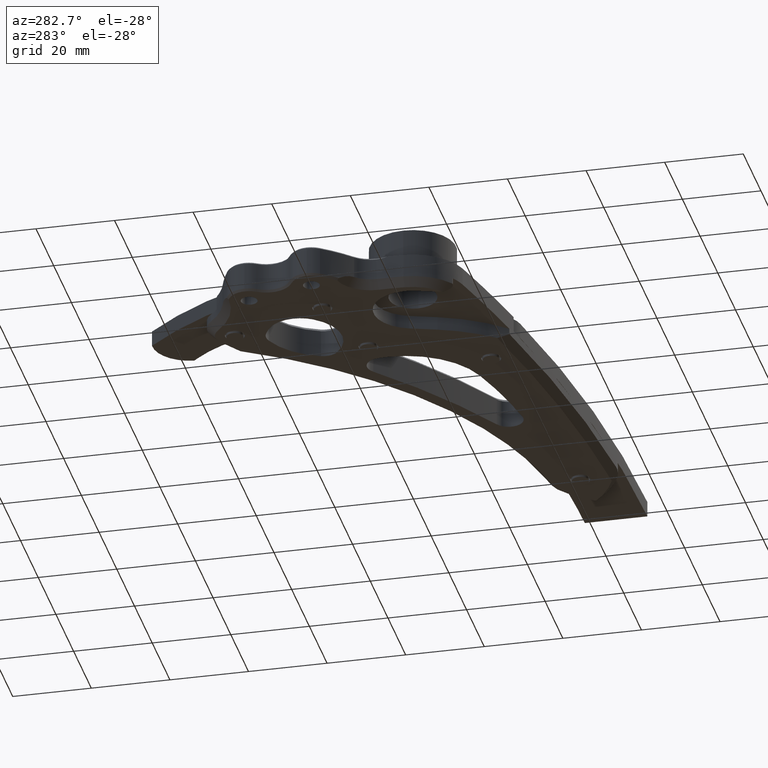
[diagram: clean part render]
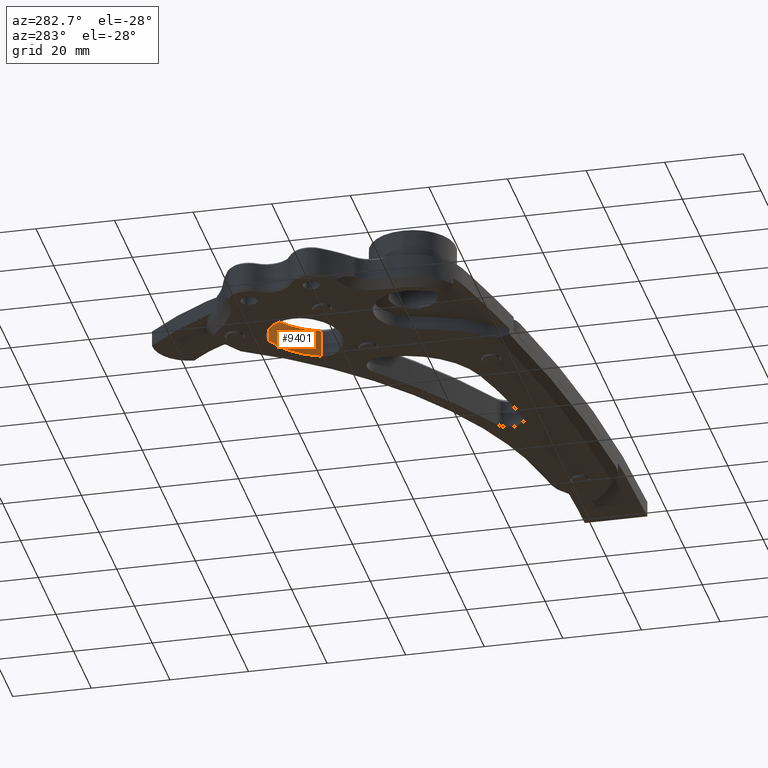
[diagram: same view with one face highlighted and labeled with its STEP entity id]
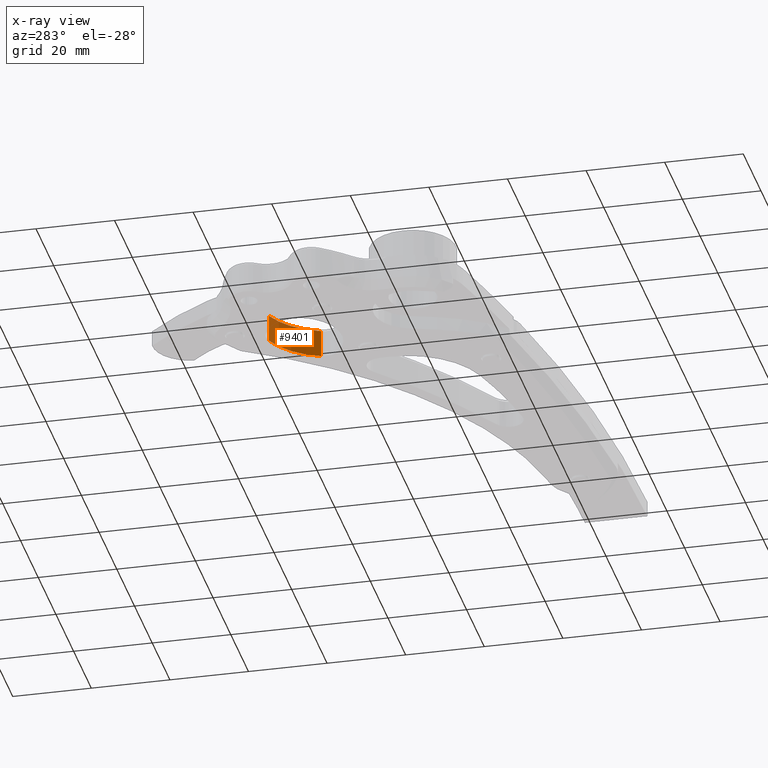
[diagram: x-ray of the same camera — body ghosted, the highlighted face saturated]
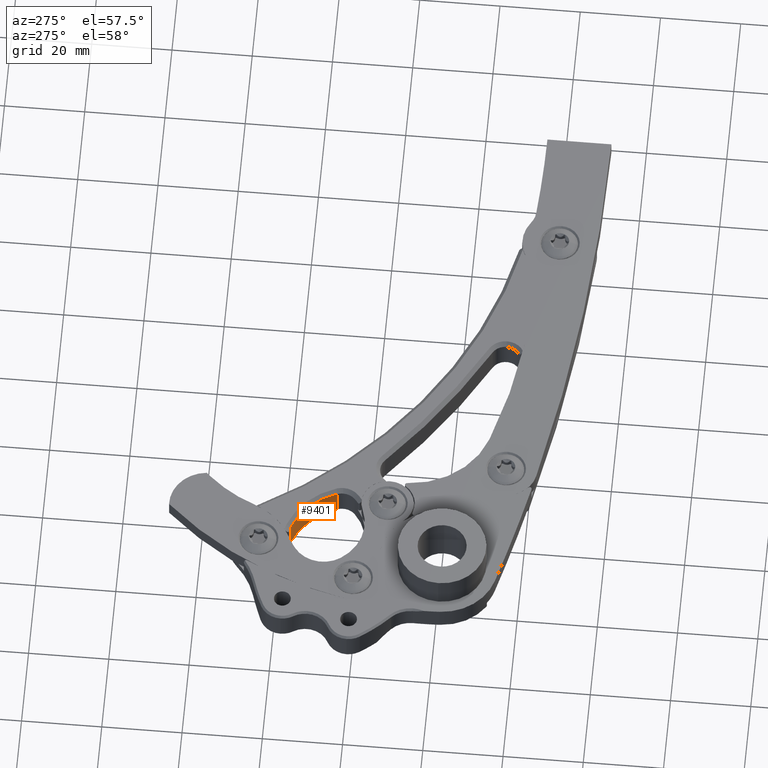
[diagram: same view with one face highlighted and labeled with its STEP entity id]
A machine part, auxiliary view. The second image highlights one B-rep face of the part: STEP entity #9401.
The next image is the same camera in x-ray: the body ghosted, the highlighted face saturated — about 0% of this face is hidden behind the body in this view.
A second angle (auxiliary view) of the same face is appended — the face is thin or edge-on in the first view.
In plain terms, the highlighted cylindrical surface (partial cylindrical patch) has radius 18 mm, axis along (0, 0, -1).
Its self-contained STEP definition (entity closure, byte-faithful):
#171 = VERTEX_POINT ( 'NONE', #5964 ) ;
#196 = DIRECTION ( 'NONE',  ( 0.0000000000000000000, 0.0000000000000000000, -1.000000000000000000 ) ) ;
#451 = CARTESIAN_POINT ( 'NONE',  ( 0.7477740345579309000, 1.090413955512788524, 0.2755905511811025943 ) ) ;
#468 = FACE_OUTER_BOUND ( 'NONE', #1988, .T. ) ;
#580 = CARTESIAN_POINT ( 'NONE',  ( 0.7477740345579309000, 1.090413955512788524, 0.0000000000000000000 ) ) ;
#732 = VECTOR ( 'NONE', #1015, 39.37007874015748143 ) ;
#820 = VECTOR ( 'NONE', #196, 39.37007874015748143 ) ;
#924 = CARTESIAN_POINT ( 'NONE',  ( 0.7477740345579309000, 1.090413955512788524, 6.204835224786508618 ) ) ;
#1015 = DIRECTION ( 'NONE',  ( 0.0000000000000000000, 0.0000000000000000000, -1.000000000000000000 ) ) ;
#1272 = AXIS2_PLACEMENT_3D ( 'NONE', #6043, #7836, #1554 ) ;
#1317 = CARTESIAN_POINT ( 'NONE',  ( 0.3203078328075648629, 1.516672676733199943, 6.204835224786508618 ) ) ;
#1469 = CARTESIAN_POINT ( 'NONE',  ( 0.3203078328075648629, 1.516672676733199943, 0.2755905511811025943 ) ) ;
#1554 = DIRECTION ( 'NONE',  ( 1.000000000000000000, 0.0000000000000000000, 0.0000000000000000000 ) ) ;
#1988 = EDGE_LOOP ( 'NONE', ( #4911, #3008, #8719, #6196 ) ) ;
#2112 = CARTESIAN_POINT ( 'NONE',  ( 0.08130912104371064431, 0.8495290488859255085, 6.204835224786508618 ) ) ;
#2703 = VERTEX_POINT ( 'NONE', #1469 ) ;
#2721 = AXIS2_PLACEMENT_3D ( 'NONE', #6009, #7447, #5433 ) ;
#3008 = ORIENTED_EDGE ( 'NONE', *, *, #9416, .T. ) ;
#3058 = DIRECTION ( 'NONE',  ( 0.0000000000000000000, 0.0000000000000000000, -1.000000000000000000 ) ) ;
#3125 = EDGE_CURVE ( 'NONE', #9390, #171, #7790, .T. ) ;
#3861 = EDGE_CURVE ( 'NONE', #2703, #171, #6331, .T. ) ;
#4237 = CYLINDRICAL_SURFACE ( 'NONE', #5058, 0.7086614173228353852 ) ;
#4359 = DIRECTION ( 'NONE',  ( -1.000000000000000000, 0.0000000000000000000, 0.0000000000000000000 ) ) ;
#4911 = ORIENTED_EDGE ( 'NONE', *, *, #8764, .F. ) ;
#5058 = AXIS2_PLACEMENT_3D ( 'NONE', #2112, #3058, #4359 ) ;
#5433 = DIRECTION ( 'NONE',  ( 1.000000000000000000, 0.0000000000000000000, 0.0000000000000000000 ) ) ;
#5964 = CARTESIAN_POINT ( 'NONE',  ( 0.3203078328075648629, 1.516672676733199943, 0.0000000000000000000 ) ) ;
#6009 = CARTESIAN_POINT ( 'NONE',  ( 0.08130912104371064431, 0.8495290488859255085, 0.2755905511811025943 ) ) ;
#6043 = CARTESIAN_POINT ( 'NONE',  ( 0.08130912104371064431, 0.8495290488859255085, 0.0000000000000000000 ) ) ;
#6196 = ORIENTED_EDGE ( 'NONE', *, *, #3125, .F. ) ;
#6331 = LINE ( 'NONE', #1317, #820 ) ;
#6482 = CIRCLE ( 'NONE', #2721, 0.7086614173228353852 ) ;
#6741 = LINE ( 'NONE', #924, #732 ) ;
#7447 = DIRECTION ( 'NONE',  ( 0.0000000000000000000, 0.0000000000000000000, 1.000000000000000000 ) ) ;
#7790 = CIRCLE ( 'NONE', #1272, 0.7086614173228353852 ) ;
#7836 = DIRECTION ( 'NONE',  ( 0.0000000000000000000, 0.0000000000000000000, 1.000000000000000000 ) ) ;
#8719 = ORIENTED_EDGE ( 'NONE', *, *, #3861, .T. ) ;
#8764 = EDGE_CURVE ( 'NONE', #9130, #9390, #6741, .T. ) ;
#9130 = VERTEX_POINT ( 'NONE', #451 ) ;
#9390 = VERTEX_POINT ( 'NONE', #580 ) ;
#9401 = ADVANCED_FACE ( 'NONE', ( #468 ), #4237, .F. ) ;
#9416 = EDGE_CURVE ( 'NONE', #9130, #2703, #6482, .T. ) ;